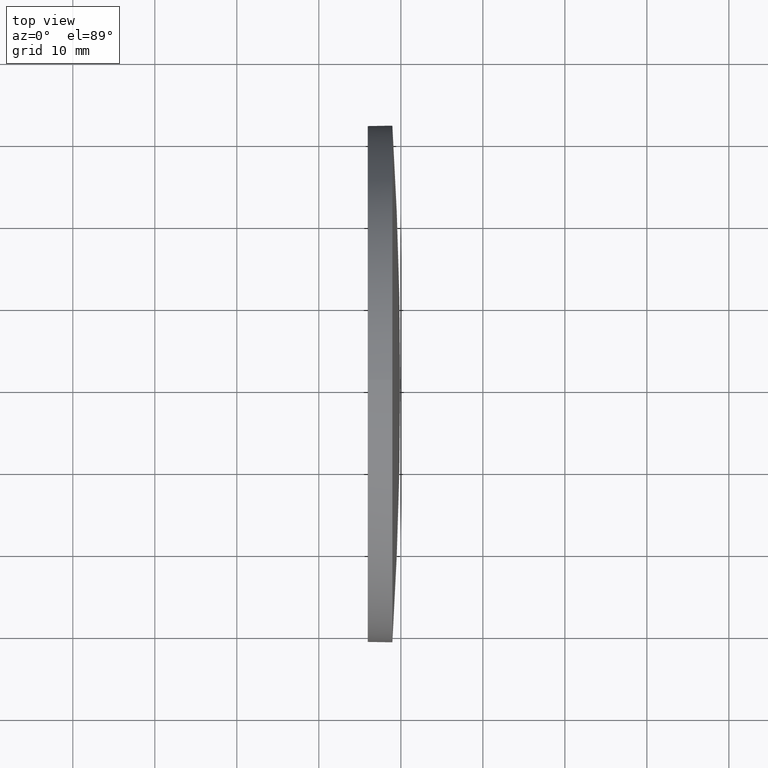
[diagram: clean part render]
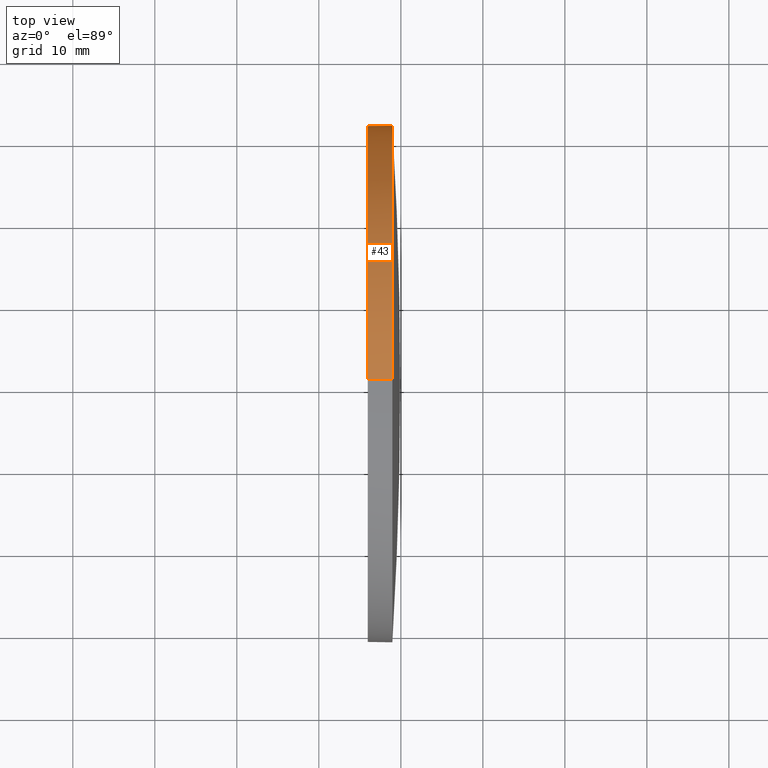
[diagram: same view with one face highlighted and labeled with its STEP entity id]
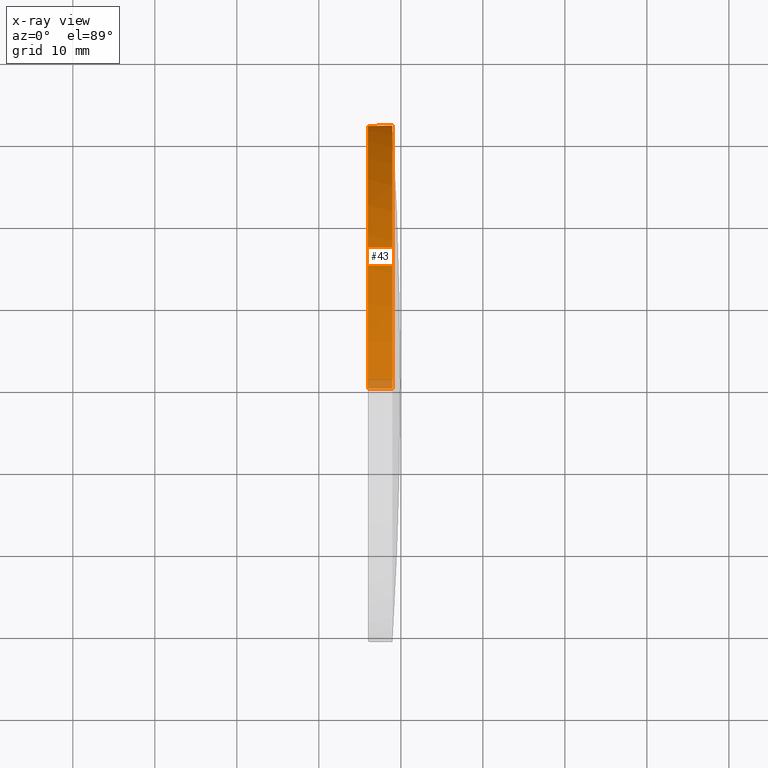
[diagram: x-ray of the same camera — body ghosted, the highlighted face saturated]
A machine part, top view. The second image highlights one B-rep face of the part: STEP entity #43.
The next image is the same camera in x-ray: the body ghosted, the highlighted face saturated — about 3% of this face is hidden behind the body in this view.
In plain terms, the highlighted cylindrical surface (partial cylindrical patch) has radius 31.5 mm, axis along (-1, -0, -0).
Its self-contained STEP definition (entity closure, byte-faithful):
#1 = VECTOR ( 'NONE', #144, 1000.000000000000000 ) ;
#5 = CARTESIAN_POINT ( 'NONE',  ( 228.9653141997174000, 161.9671098528241900, 0.0000000000000000000 ) ) ;
#7 = CARTESIAN_POINT ( 'NONE',  ( 228.9653141997173700, 130.4671098528244200, 0.0000000000000000000 ) ) ;
#8 = CARTESIAN_POINT ( 'NONE',  ( 225.9653141997173400, 130.4671098528244200, -31.50000000000000000 ) ) ;
#13 = CARTESIAN_POINT ( 'NONE',  ( 228.9653141997173700, 130.4671098528244200, -31.50000000000000000 ) ) ;
#14 = CIRCLE ( 'NONE', #163, 31.50000000000000000 ) ;
#19 = CARTESIAN_POINT ( 'NONE',  ( 225.9653141997173400, 130.4671098528244200, 0.0000000000000000000 ) ) ;
#26 = VERTEX_POINT ( 'NONE', #32 ) ;
#31 = DIRECTION ( 'NONE',  ( 0.0000000000000000000, 0.0000000000000000000, 1.000000000000000000 ) ) ;
#32 = CARTESIAN_POINT ( 'NONE',  ( 228.9653141997173700, 130.4671098528244200, 31.50000000000000000 ) ) ;
#40 = EDGE_LOOP ( 'NONE', ( #54, #60, #157, #183, #67 ) ) ;
#41 = CIRCLE ( 'NONE', #112, 31.50000000000000000 ) ;
#43 = ADVANCED_FACE ( 'NONE', ( #77 ), #150, .T. ) ;
#46 = CARTESIAN_POINT ( 'NONE',  ( 217.9945825323866300, 130.4671098528244200, 0.0000000000000000000 ) ) ;
#51 = CARTESIAN_POINT ( 'NONE',  ( 217.9945825323866300, 130.4671098528244200, -31.50000000000000000 ) ) ;
#54 = ORIENTED_EDGE ( 'NONE', *, *, #55, .T. ) ;
#55 = EDGE_CURVE ( 'NONE', #107, #82, #41, .T. ) ;
#60 = ORIENTED_EDGE ( 'NONE', *, *, #141, .T. ) ;
#66 = EDGE_CURVE ( 'NONE', #142, #91, #108, .T. ) ;
#67 = ORIENTED_EDGE ( 'NONE', *, *, #75, .T. ) ;
#75 = EDGE_CURVE ( 'NONE', #26, #107, #14, .T. ) ;
#77 = FACE_OUTER_BOUND ( 'NONE', #40, .T. ) ;
#82 = VERTEX_POINT ( 'NONE', #13 ) ;
#84 = DIRECTION ( 'NONE',  ( -1.000000000000000000, -0.0000000000000000000, -0.0000000000000000000 ) ) ;
#85 = DIRECTION ( 'NONE',  ( 0.0000000000000000000, 0.0000000000000000000, 1.000000000000000000 ) ) ;
#87 = DIRECTION ( 'NONE',  ( 0.0000000000000000000, 0.0000000000000000000, 1.000000000000000000 ) ) ;
#90 = CARTESIAN_POINT ( 'NONE',  ( 225.9653141997173400, 130.4671098528244200, 31.50000000000000000 ) ) ;
#91 = VERTEX_POINT ( 'NONE', #8 ) ;
#98 = DIRECTION ( 'NONE',  ( -1.000000000000000000, -0.0000000000000000000, -0.0000000000000000000 ) ) ;
#99 = CARTESIAN_POINT ( 'NONE',  ( 228.9653141997173700, 130.4671098528244200, 0.0000000000000000000 ) ) ;
#104 = LINE ( 'NONE', #51, #1 ) ;
#107 = VERTEX_POINT ( 'NONE', #5 ) ;
#108 = CIRCLE ( 'NONE', #159, 31.50000000000000000 ) ;
#109 = VECTOR ( 'NONE', #162, 1000.000000000000000 ) ;
#112 = AXIS2_PLACEMENT_3D ( 'NONE', #99, #98, #31 ) ;
#135 = LINE ( 'NONE', #146, #109 ) ;
#138 = DIRECTION ( 'NONE',  ( -1.000000000000000000, -0.0000000000000000000, -0.0000000000000000000 ) ) ;
#141 = EDGE_CURVE ( 'NONE', #82, #91, #104, .T. ) ;
#142 = VERTEX_POINT ( 'NONE', #90 ) ;
#144 = DIRECTION ( 'NONE',  ( -1.000000000000000000, -0.0000000000000000000, -0.0000000000000000000 ) ) ;
#146 = CARTESIAN_POINT ( 'NONE',  ( 217.9945825323866300, 130.4671098528244200, 31.50000000000000000 ) ) ;
#150 = CYLINDRICAL_SURFACE ( 'NONE', #169, 31.50000000000000000 ) ;
#155 = DIRECTION ( 'NONE',  ( 0.0000000000000000000, 0.0000000000000000000, 1.000000000000000000 ) ) ;
#157 = ORIENTED_EDGE ( 'NONE', *, *, #66, .F. ) ;
#159 = AXIS2_PLACEMENT_3D ( 'NONE', #19, #84, #87 ) ;
#162 = DIRECTION ( 'NONE',  ( -1.000000000000000000, -0.0000000000000000000, -0.0000000000000000000 ) ) ;
#163 = AXIS2_PLACEMENT_3D ( 'NONE', #7, #168, #85 ) ;
#168 = DIRECTION ( 'NONE',  ( -1.000000000000000000, -0.0000000000000000000, -0.0000000000000000000 ) ) ;
#169 = AXIS2_PLACEMENT_3D ( 'NONE', #46, #138, #155 ) ;
#182 = EDGE_CURVE ( 'NONE', #26, #142, #135, .T. ) ;
#183 = ORIENTED_EDGE ( 'NONE', *, *, #182, .F. ) ;